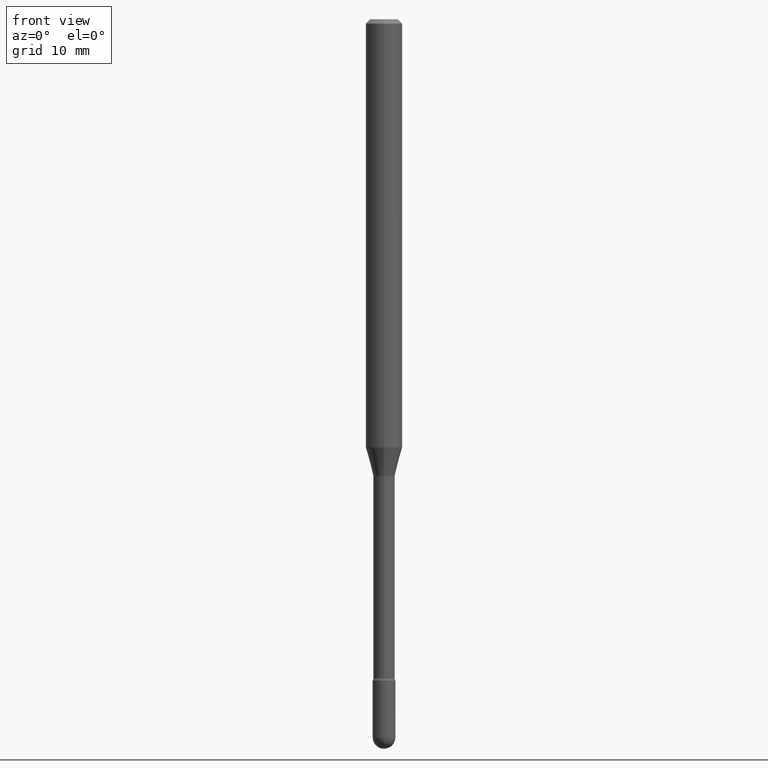
[diagram: clean part render]
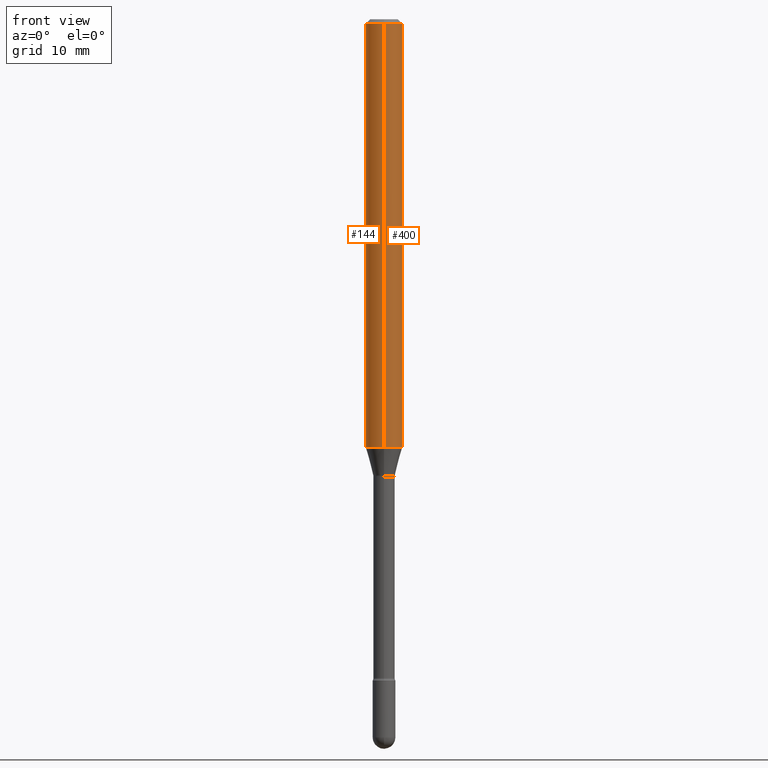
[diagram: same view with one multi-face feature highlighted, each face labeled with its STEP entity id]
A machine part, front view. The highlighted faces form ONE feature: a constant-radius fillet chain: 2 tangent blend faces with common blend radius 1.5875 mm. The faces share edges in the B-rep.
Their STEP definitions:
[1] entity #144 (Cylinder):
#4 = CARTESIAN_POINT ( 'NONE',  ( 4.440892098500625669E-16, 0.06250000000000000000, 2.598526516763685098E-16 ) ) ;
#7 = CARTESIAN_POINT ( 'NONE',  ( 4.440892098500987066E-16, 0.06249999999999995143, -0.01500000000000030129 ) ) ;
#24 = AXIS2_PLACEMENT_3D ( 'NONE', #299, #517, #32 ) ;
#32 = DIRECTION ( 'NONE',  ( -6.982962677686265922E-15, -1.000000000000000000, 3.491531955438041643E-15 ) ) ;
#33 = CARTESIAN_POINT ( 'NONE',  ( 4.440892098500981149E-16, 0.06249999999999484440, -1.467526486624345150 ) ) ;
#41 = EDGE_CURVE ( 'NONE', #186, #283, #173, .T. ) ;
#52 = DIRECTION ( 'NONE',  ( -2.445433460805834454E-29, 3.491531955438040460E-15, 1.000000000000000000 ) ) ;
#62 = VERTEX_POINT ( 'NONE', #188 ) ;
#73 = ORIENTED_EDGE ( 'NONE', *, *, #351, .F. ) ;
#76 = ORIENTED_EDGE ( 'NONE', *, *, #273, .F. ) ;
#111 = ORIENTED_EDGE ( 'NONE', *, *, #336, .T. ) ;
#112 = CARTESIAN_POINT ( 'NONE',  ( 3.668150191208771282E-31, -5.237297933157090296E-17, -0.01500000000000008271 ) ) ;
#144 = ADVANCED_FACE ( 'NONE', ( #201 ), #467, .T. ) ;
#147 = ORIENTED_EDGE ( 'NONE', *, *, #41, .T. ) ;
#173 = CIRCLE ( 'NONE', #480, 0.06250000000000000000 ) ;
#186 = VERTEX_POINT ( 'NONE', #33 ) ;
#188 = CARTESIAN_POINT ( 'NONE',  ( -4.364351673553912750E-16, -0.06250000000000005551, -0.01499999999999986587 ) ) ;
#201 = FACE_OUTER_BOUND ( 'NONE', #237, .T. ) ;
#215 = VECTOR ( 'NONE', #450, 39.37007874015748143 ) ;
#222 = LINE ( 'NONE', #441, #515 ) ;
#230 = CIRCLE ( 'NONE', #556, 0.06250000000000000000 ) ;
#231 = CARTESIAN_POINT ( 'NONE',  ( 3.588738375009998954E-29, -5.123915623500615867E-15, -1.467526486624344928 ) ) ;
#237 = EDGE_LOOP ( 'NONE', ( #73, #147, #111, #76 ) ) ;
#273 = EDGE_CURVE ( 'NONE', #325, #62, #230, .T. ) ;
#281 = DIRECTION ( 'NONE',  ( -6.982962677686265922E-15, -1.000000000000000000, 4.370956789862821150E-15 ) ) ;
#283 = VERTEX_POINT ( 'NONE', #314 ) ;
#299 = CARTESIAN_POINT ( 'NONE',  ( -1.169113584055446105E-44, 1.669184350826100908E-30, 4.780733988912460139E-16 ) ) ;
#314 = CARTESIAN_POINT ( 'NONE',  ( -4.364351673553559242E-16, -0.06250000000000516254, -1.467526486624344484 ) ) ;
#315 = DIRECTION ( 'NONE',  ( -2.445433460805834174E-29, 3.491531955438040854E-15, 1.000000000000000000 ) ) ;
#325 = VERTEX_POINT ( 'NONE', #7 ) ;
#336 = EDGE_CURVE ( 'NONE', #283, #62, #222, .T. ) ;
#351 = EDGE_CURVE ( 'NONE', #186, #325, #537, .T. ) ;
#360 = DIRECTION ( 'NONE',  ( -2.445433460805834174E-29, 3.491531955438040854E-15, 1.000000000000000000 ) ) ;
#441 = CARTESIAN_POINT ( 'NONE',  ( -4.364351673553916201E-16, -0.06250000000000000000, 6.962941461061236659E-16 ) ) ;
#450 = DIRECTION ( 'NONE',  ( -2.445433460805834454E-29, 3.491531955438040460E-15, 1.000000000000000000 ) ) ;
#467 = CYLINDRICAL_SURFACE ( 'NONE', #24, 0.06250000000000000000 ) ;
#480 = AXIS2_PLACEMENT_3D ( 'NONE', #231, #315, #281 ) ;
#515 = VECTOR ( 'NONE', #52, 39.37007874015748143 ) ;
#517 = DIRECTION ( 'NONE',  ( -2.445433460805834174E-29, 3.491531955438040854E-15, 1.000000000000000000 ) ) ;
#537 = LINE ( 'NONE', #4, #215 ) ;
#549 = DIRECTION ( 'NONE',  ( -6.982962677686265922E-15, -1.000000000000000000, 3.483106191921935554E-15 ) ) ;
#556 = AXIS2_PLACEMENT_3D ( 'NONE', #112, #360, #549 ) ;
[2] entity #400 (Cylinder):
#4 = CARTESIAN_POINT ( 'NONE',  ( 4.440892098500625669E-16, 0.06250000000000000000, 2.598526516763685098E-16 ) ) ;
#7 = CARTESIAN_POINT ( 'NONE',  ( 4.440892098500987066E-16, 0.06249999999999995143, -0.01500000000000030129 ) ) ;
#16 = FACE_OUTER_BOUND ( 'NONE', #106, .T. ) ;
#33 = CARTESIAN_POINT ( 'NONE',  ( 4.440892098500981149E-16, 0.06249999999999484440, -1.467526486624345150 ) ) ;
#48 = DIRECTION ( 'NONE',  ( -2.445433460805834174E-29, 3.491531955438040854E-15, 1.000000000000000000 ) ) ;
#52 = DIRECTION ( 'NONE',  ( -2.445433460805834454E-29, 3.491531955438040460E-15, 1.000000000000000000 ) ) ;
#62 = VERTEX_POINT ( 'NONE', #188 ) ;
#106 = EDGE_LOOP ( 'NONE', ( #459, #223, #200, #371 ) ) ;
#126 = EDGE_CURVE ( 'NONE', #62, #325, #330, .T. ) ;
#186 = VERTEX_POINT ( 'NONE', #33 ) ;
#188 = CARTESIAN_POINT ( 'NONE',  ( -4.364351673553912750E-16, -0.06250000000000005551, -0.01499999999999986587 ) ) ;
#189 = CYLINDRICAL_SURFACE ( 'NONE', #320, 0.06250000000000000000 ) ;
#200 = ORIENTED_EDGE ( 'NONE', *, *, #126, .F. ) ;
#210 = DIRECTION ( 'NONE',  ( -6.982962677686265922E-15, -1.000000000000000000, 3.483106191921935554E-15 ) ) ;
#215 = VECTOR ( 'NONE', #450, 39.37007874015748143 ) ;
#222 = LINE ( 'NONE', #441, #515 ) ;
#223 = ORIENTED_EDGE ( 'NONE', *, *, #351, .T. ) ;
#268 = EDGE_CURVE ( 'NONE', #283, #186, #332, .T. ) ;
#282 = CARTESIAN_POINT ( 'NONE',  ( -1.169113584055446105E-44, 1.669184350826100908E-30, 4.780733988912460139E-16 ) ) ;
#283 = VERTEX_POINT ( 'NONE', #314 ) ;
#297 = DIRECTION ( 'NONE',  ( -2.445433460805834174E-29, 3.491531955438040854E-15, 1.000000000000000000 ) ) ;
#314 = CARTESIAN_POINT ( 'NONE',  ( -4.364351673553559242E-16, -0.06250000000000516254, -1.467526486624344484 ) ) ;
#320 = AXIS2_PLACEMENT_3D ( 'NONE', #282, #48, #364 ) ;
#325 = VERTEX_POINT ( 'NONE', #7 ) ;
#330 = CIRCLE ( 'NONE', #532, 0.06250000000000000000 ) ;
#332 = CIRCLE ( 'NONE', #481, 0.06250000000000000000 ) ;
#336 = EDGE_CURVE ( 'NONE', #283, #62, #222, .T. ) ;
#351 = EDGE_CURVE ( 'NONE', #186, #325, #537, .T. ) ;
#357 = CARTESIAN_POINT ( 'NONE',  ( 3.588738375009998954E-29, -5.123915623500615867E-15, -1.467526486624344928 ) ) ;
#364 = DIRECTION ( 'NONE',  ( -6.982962677686265922E-15, -1.000000000000000000, 3.491531955438041643E-15 ) ) ;
#371 = ORIENTED_EDGE ( 'NONE', *, *, #336, .F. ) ;
#381 = CARTESIAN_POINT ( 'NONE',  ( 3.668150191208771282E-31, -5.237297933157090296E-17, -0.01500000000000008271 ) ) ;
#400 = ADVANCED_FACE ( 'NONE', ( #16 ), #189, .T. ) ;
#441 = CARTESIAN_POINT ( 'NONE',  ( -4.364351673553916201E-16, -0.06250000000000000000, 6.962941461061236659E-16 ) ) ;
#450 = DIRECTION ( 'NONE',  ( -2.445433460805834454E-29, 3.491531955438040460E-15, 1.000000000000000000 ) ) ;
#452 = DIRECTION ( 'NONE',  ( -2.445433460805834174E-29, 3.491531955438040854E-15, 1.000000000000000000 ) ) ;
#459 = ORIENTED_EDGE ( 'NONE', *, *, #268, .T. ) ;
#481 = AXIS2_PLACEMENT_3D ( 'NONE', #357, #452, #510 ) ;
#510 = DIRECTION ( 'NONE',  ( -6.982962677686265922E-15, -1.000000000000000000, 4.370956789862821150E-15 ) ) ;
#515 = VECTOR ( 'NONE', #52, 39.37007874015748143 ) ;
#532 = AXIS2_PLACEMENT_3D ( 'NONE', #381, #297, #210 ) ;
#537 = LINE ( 'NONE', #4, #215 ) ;